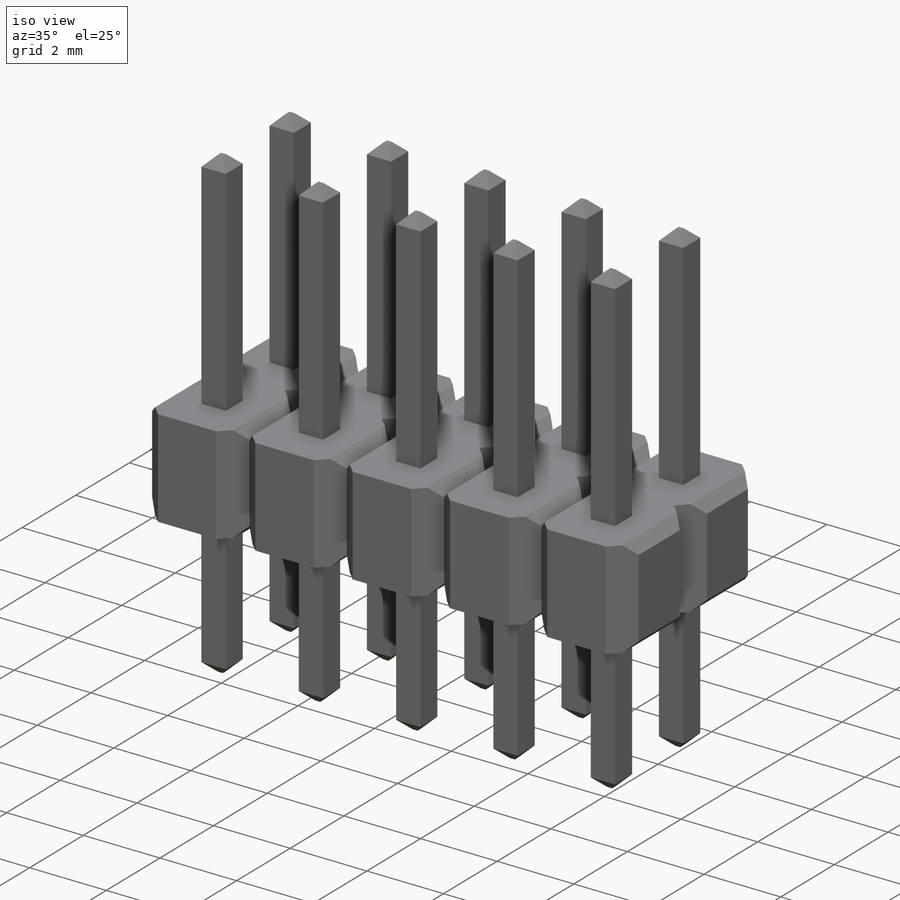
[diagram: iso view]
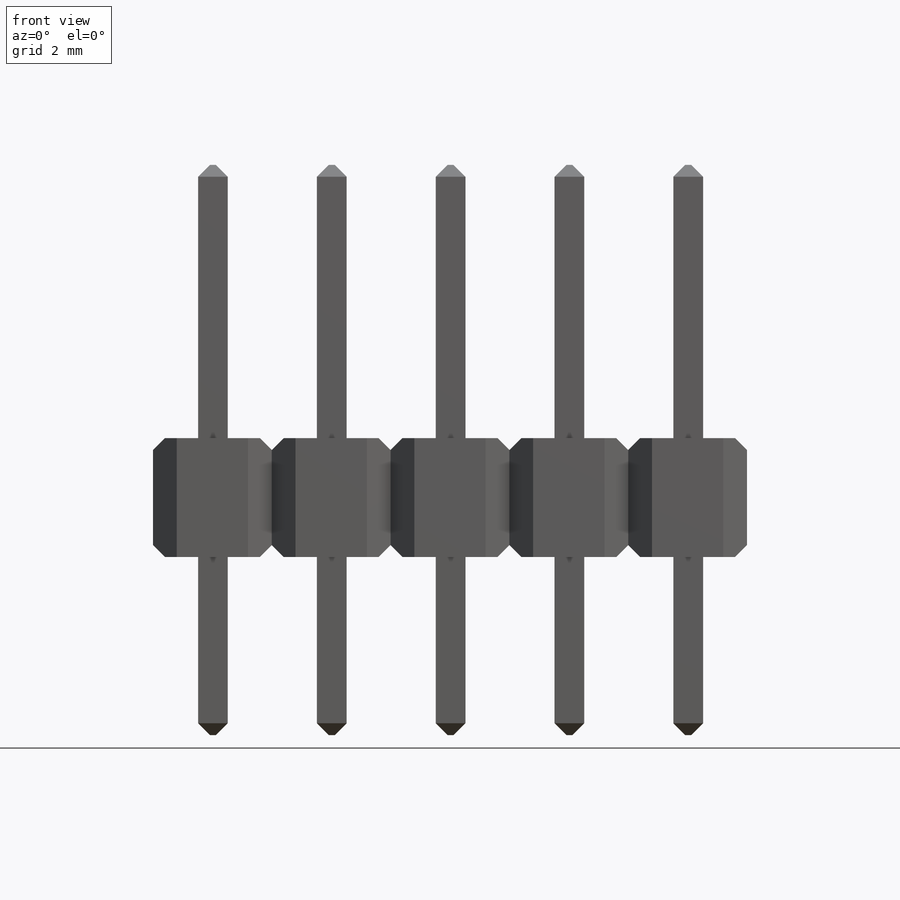
[diagram: front view]
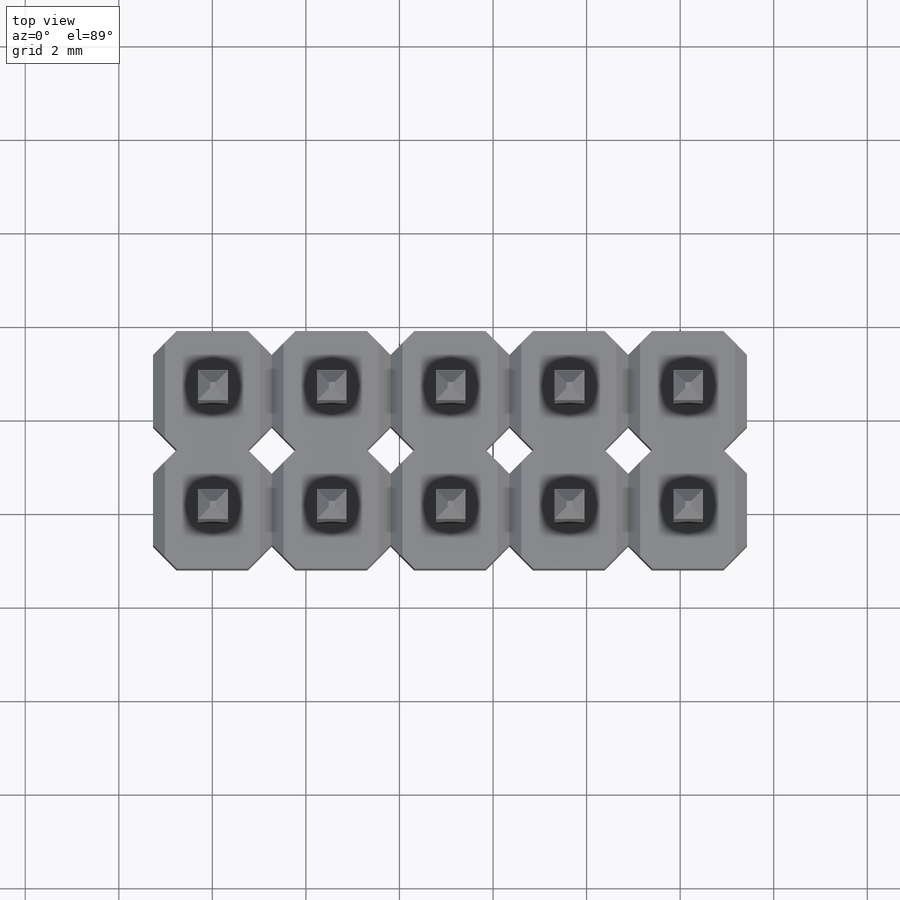
[diagram: top view]
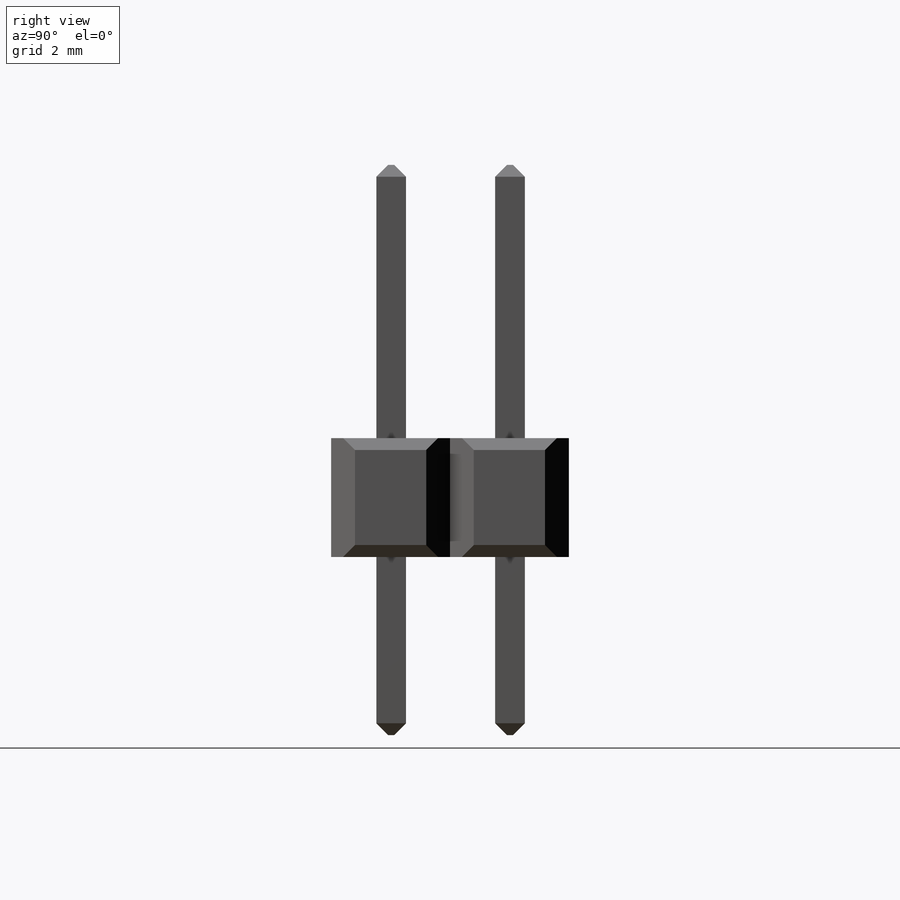
[diagram: right view]
SOLIDWORKS PART (.sldprt)
format: sldprt  version: not decoded by parser v0  size: 624,640 bytes
history: native  units: mm
features: chamfer x5, sketch x3, extrude x2, material x1, pattern_linear x1, plane x1 (+12 scaffold rows collapsed)
feature tree (25):
  scaffold x12  (default folders/planes/origin — collapsed)
  material  "Material <not specified>"
  sketch  "Sketch1"  dims[D1=1.27mm D2=2.54mm D3=1.27mm D4=2.54mm]
  extrude  "Base-Extrude"  Depth=2.54mm
  chamfer  "Chamfer1"  Distance=0.254mm
  chamfer  "Chamfer2"  Distance=0.254mm
  chamfer  "Chamfer3"  Distance=0.508mm
  chamfer  "Chamfer4"  Distance=0.508mm
  sketch  "Sketch2"  dims[D1=0.3302mm D2=0.635mm D3=0.3302mm D4=0.635mm]
  extrude  "Boss-Extrude1"  Depth=3.81mm
  chamfer  "Chamfer5"  Distance=0.254mm Angle=45deg
  pattern_linear  "LPattern1"  Count1=5 Count2=2 Spacing1=2.54mm Spacing2=2.54mm
  plane  "Board Surface"  Offset=1mm
  sketch  "Component_Outline"
decode coverage: 10 of 11 modeling features carry decoded parameters
note: suppression state not decoded; provenance and decode notes live in map.json
